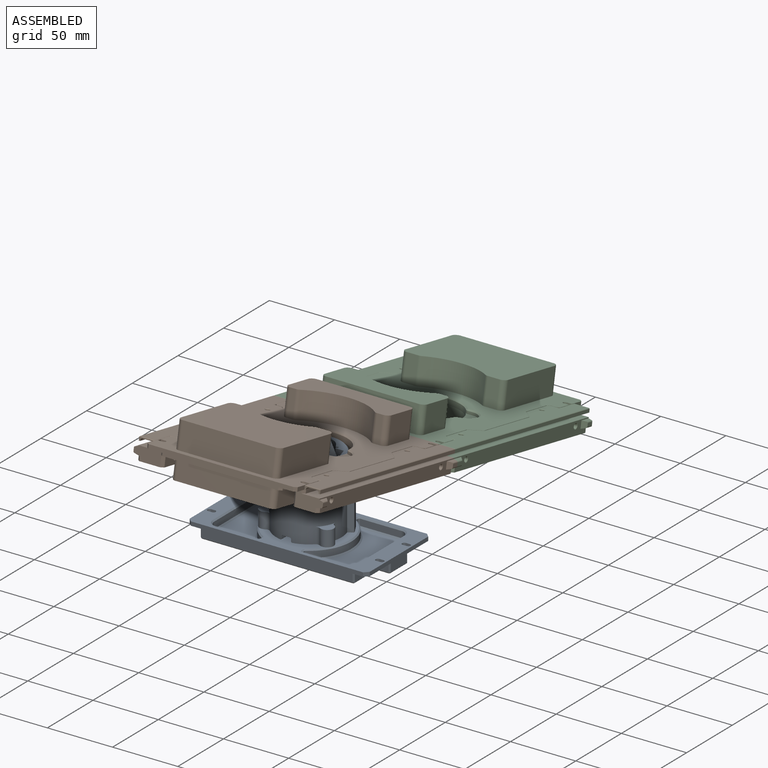
[diagram: assembled view]
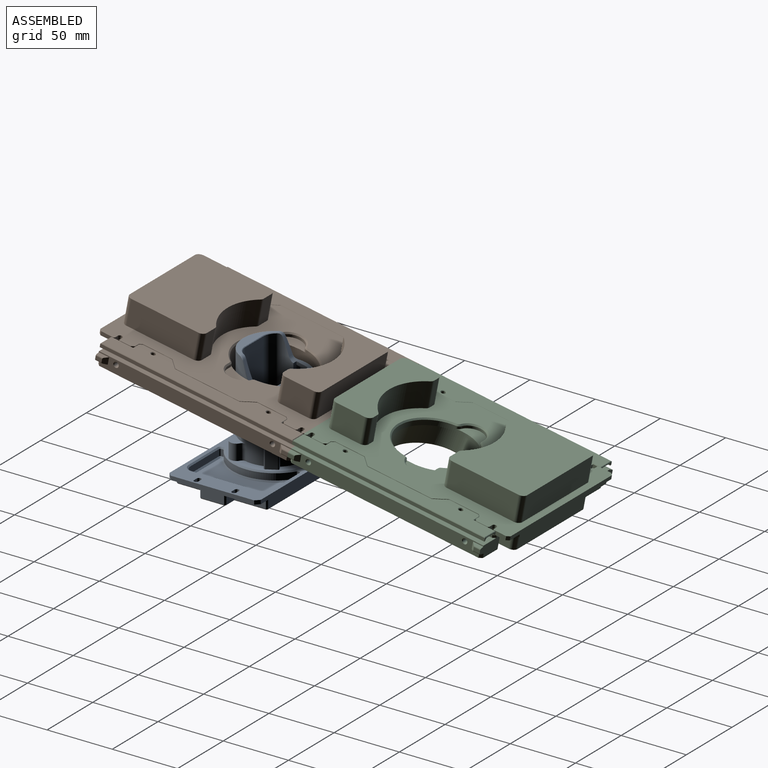
[diagram: assembled view, second angle]
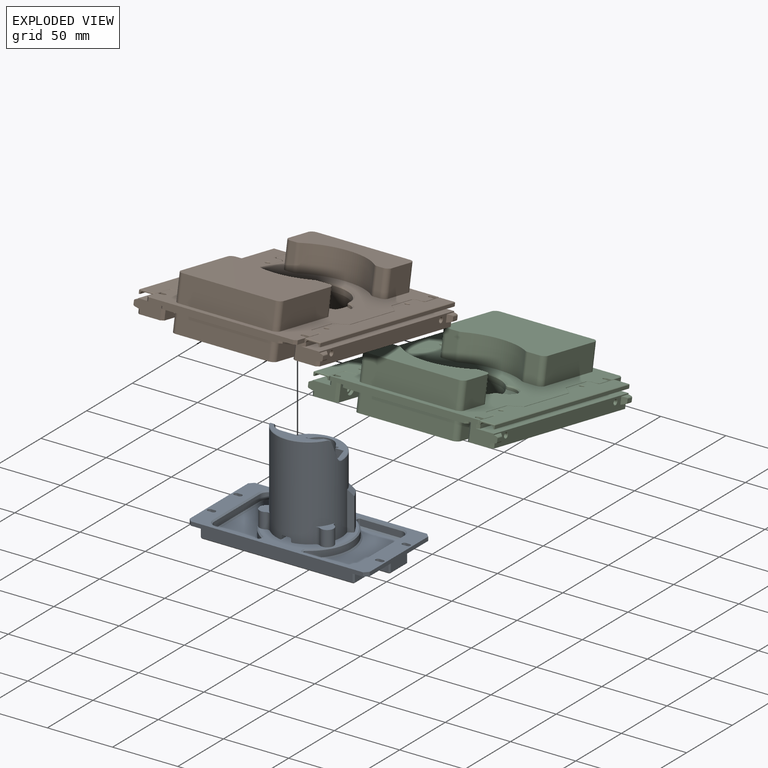
[diagram: exploded view]
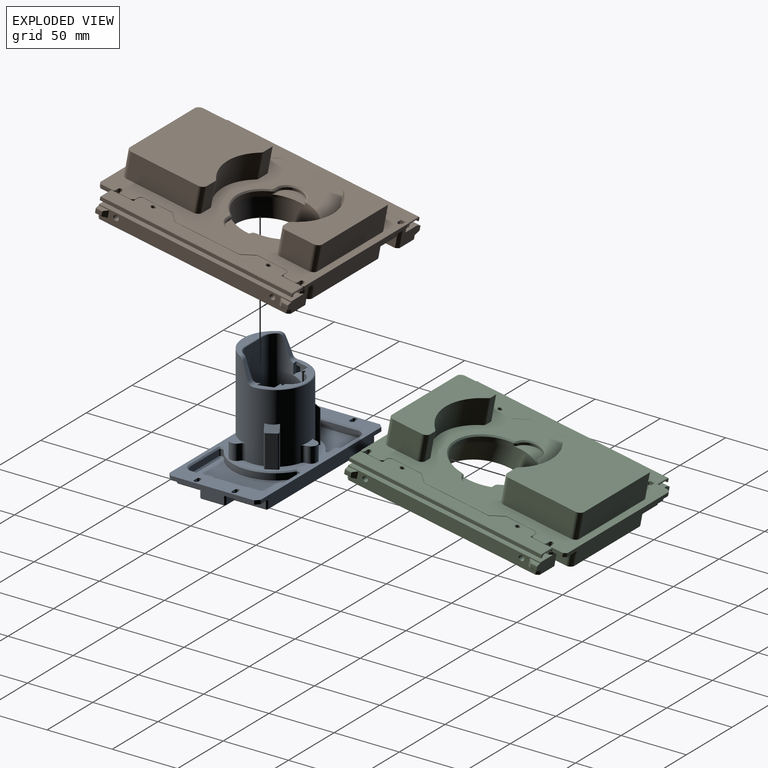
[diagram: exploded view, second angle]
FCSTD DOCUMENT  (FreeCAD 1.2R20260204 (Git shallow))
Label: RC-Robot-asm
License: All rights reserved
LicenseURL: https://en.wikipedia.org/wiki/All_rights_reserved
objects: App::Link×38, App::FeaturePython×10, App::Point×2, Assembly::AssemblyLink×1, Assembly::JointGroup×1, Assembly::AssemblyObject×1
EXTERNAL_REF file=RC-Robot-structure-asm.FCStd obj=Assembly
EXTERNAL_REF file=RC-Robot-structure-asm.FCStd obj=_2020_50mm
EXTERNAL_REF file=RC-Robot-structure-asm.FCStd obj=_2020_50mm001
EXTERNAL_REF file=RC-Robot-structure-asm.FCStd obj=_2020_300mm
EXTERNAL_REF file=RC-Robot-structure-asm.FCStd obj=_2020_300mm001
EXTERNAL_REF file=RC-Robot-structure-asm.FCStd obj=_2020_300mm002
EXTERNAL_REF file=RC-Robot-structure-asm.FCStd obj=_2020_300mm003
EXTERNAL_REF file=RC-Robot-structure-asm.FCStd obj=_2020_300mm004
EXTERNAL_REF file=RC-Robot-structure-asm.FCStd obj=_2020_300mm005
EXTERNAL_REF file=RC-Robot-structure-asm.FCStd obj=_2020_300mm006
EXTERNAL_REF file=RC-Robot-structure-asm.FCStd obj=_2020_300mm007
EXTERNAL_REF file=RC-Robot-structure-asm.FCStd obj=_2020_340mm
EXTERNAL_REF file=RC-Robot-structure-asm.FCStd obj=_2020_340mm001
EXTERNAL_REF file=RC-Robot-structure-asm.FCStd obj=_2020_340mm002
EXTERNAL_REF file=RC-Robot-structure-asm.FCStd obj=CoinLateralBD
EXTERNAL_REF file=RC-Robot-structure-asm.FCStd obj=CoinLateralHD
EXTERNAL_REF file=RC-Robot-structure-asm.FCStd obj=CoinAvant001
EXTERNAL_REF file=RC-Robot-structure-asm.FCStd obj=CoinAvant__Mirror__1_
EXTERNAL_REF file=RC-Robot-structure-asm.FCStd obj=CoinLateralHG
EXTERNAL_REF file=RC-Robot-structure-asm.FCStd obj=CoinLateralBG
EXTERNAL_REF file=RC-Robot-structure-asm.FCStd obj=CoinInterieurArriere001
EXTERNAL_REF file=RC-Robot-structure-asm.FCStd obj=CoinInterieurArriere__Mirror__3_
EXTERNAL_REF file=RC-Robot-structure-asm.FCStd obj=CoinInterieurAvant001
EXTERNAL_REF file=RC-Robot-structure-asm.FCStd obj=CoinInterieurAvant__Mirror__2_
EXTERNAL_REF file=RC-Robot-structure-asm.FCStd obj=CoinInterieurArriere002
EXTERNAL_REF file=RC-Robot-structure-asm.FCStd obj=CoinInterieurArriere__Mirror__3_001
EXTERNAL_REF file=RC-Robot-structure-asm.FCStd obj=GardeBoue
EXTERNAL_REF file=RC-Robot-structure-asm.FCStd obj=GardeBoue001
EXTERNAL_REF file=RC-Robot-structure-asm.FCStd obj=motor_mounted
EXTERNAL_REF file=RC-Robot-structure-asm.FCStd obj=motor_mounted001
EXTERNAL_REF file=RC-Robot-structure-asm.FCStd obj=EnsembleRoue
EXTERNAL_REF file=RC-Robot-structure-asm.FCStd obj=EnsembleRoue001
EXTERNAL_REF file=RC-Robot-structure-asm.FCStd obj=SupportAxeRoulement
EXTERNAL_REF file=RC-Robot-structure-asm.FCStd obj=SupportAxeRoulement001
EXTERNAL_REF file=RC-Robot-structure-asm.FCStd obj=free_wheel_support
EXTERNAL_REF file=RC-Robot-structure-asm.FCStd obj=free_wheel_support001
EXTERNAL_REF file=mecanical-parts/clip-panneau.FCStd obj=Part
EXTERNAL_REF file=electrical-parts/SupportBatterie.FCStd obj=Part

FEATURE [App::Point] Origin001  label="Origine"
  Role = Origin
FEATURE [App::Point] Origin003  label="Origine002"
  Role = Origin
FEATURE [App::Link] _2020_50mm  label="2020-50mm"
  LinkPlacement = pos=(-141,2.85605,40.8027) rot=(-1,0,0;0.09388rad)
  LinkedObject = -> <external RC-Robot-structure-asm.FCStd>#_2020_50mm
  Placement = pos=(-141,2.85605,40.8027) rot=(-1,0,0;0.09388rad)
FEATURE [App::Link] _2020_50mm001  label="2020-50mm001"
  LinkPlacement = pos=(-190,332.398,9.77417) rot=(0.046871,0.046871,0.997801;4.71019rad)
  LinkedObject = -> <external RC-Robot-structure-asm.FCStd>#_2020_50mm001
  Placement = pos=(-190,332.398,9.77417) rot=(0.046871,0.046871,0.997801;4.71019rad)
FEATURE [App::Link] _2020_300mm  label="2020-300mm"
  LinkPlacement = pos=(-176,170,-7.361e-13) rot=(1,0,0;4.71239rad)
  LinkedObject = -> <external RC-Robot-structure-asm.FCStd>#_2020_300mm
  Placement = pos=(-176,170,-7.361e-13) rot=(1,0,0;4.71239rad)
FEATURE [App::Link] _2020_300mm001  label="2020-300mm001"
  LinkPlacement = pos=(-176,174.679,49.6896) rot=(1,0,0;1.38304rad)
  LinkedObject = -> <external RC-Robot-structure-asm.FCStd>#_2020_300mm001
  Placement = pos=(-176,174.679,49.6896) rot=(1,0,0;1.38304rad)
FEATURE [App::Link] _2020_300mm002  label="2020-300mm002"
  LinkPlacement = pos=(-556,170,-4.884e-13) rot=(-1,0,0;1.5708rad)
  LinkedObject = -> <external RC-Robot-structure-asm.FCStd>#_2020_300mm002
  Placement = pos=(-556,170,-4.884e-13) rot=(-1,0,0;1.5708rad)
FEATURE [App::Link] _2020_300mm003  label="2020-300mm003"
  LinkPlacement = pos=(-556,174.679,49.6896) rot=(1,0,0;4.52463rad)
  LinkedObject = -> <external RC-Robot-structure-asm.FCStd>#_2020_300mm003
  Placement = pos=(-556,174.679,49.6896) rot=(1,0,0;4.52463rad)
FEATURE [App::Link] _2020_300mm004  label="2020-300mm004"
  LinkPlacement = pos=(-286,170,2.72e-14) rot=(-1,0,0;1.5708rad)
  LinkedObject = -> <external RC-Robot-structure-asm.FCStd>#_2020_300mm004
  Placement = pos=(-286,170,2.72e-14) rot=(-1,0,0;1.5708rad)
FEATURE [App::Link] _2020_300mm005  label="2020-300mm005"
  LinkPlacement = pos=(-446,170,-2.7e-15) rot=(1,0,0;4.71239rad)
  LinkedObject = -> <external RC-Robot-structure-asm.FCStd>#_2020_300mm005
  Placement = pos=(-446,170,-2.7e-15) rot=(1,0,0;4.71239rad)
FEATURE [App::Link] _2020_300mm006  label="2020-300mm006"
  LinkPlacement = pos=(-286,174.679,49.6896) rot=(1,0,0;4.52463rad)
  LinkedObject = -> <external RC-Robot-structure-asm.FCStd>#_2020_300mm006
  Placement = pos=(-286,174.679,49.6896) rot=(1,0,0;4.52463rad)
FEATURE [App::Link] _2020_300mm007  label="2020-300mm007"
  LinkPlacement = pos=(-446,174.679,49.6896) rot=(1,0,0;4.52463rad)
  LinkedObject = -> <external RC-Robot-structure-asm.FCStd>#_2020_300mm007
  Placement = pos=(-446,174.679,49.6896) rot=(1,0,0;4.52463rad)
FEATURE [App::Link] _2020_340mm  label="2020-340mm"
  LinkPlacement = pos=(6.41e-14,-403,-5.59e-14) rot=(0.57735,0.57735,0.57735;2.0944rad)
  LinkedObject = -> <external RC-Robot-structure-asm.FCStd>#_2020_340mm
  Placement = pos=(6.41e-14,-403,-5.59e-14) rot=(0.57735,0.57735,0.57735;2.0944rad)
FEATURE [App::Link] _2020_340mm001  label="2020-340mm001"
  LinkPlacement = pos=(1.53e-14,-67.5569,-314.496) rot=(0.093333,0.991251,-0.093333;4.7036rad)
  LinkedObject = -> <external RC-Robot-structure-asm.FCStd>#_2020_340mm001
  Placement = pos=(1.53e-14,-67.5569,-314.496) rot=(0.093333,0.991251,-0.093333;4.7036rad)
FEATURE [App::Link] _2020_340mm002  label="2020-340mm002"
  LinkPlacement = pos=(1.04e-14,312.134,-393.1) rot=(0.046871,0.997801,-0.046871;4.71019rad)
  LinkedObject = -> <external RC-Robot-structure-asm.FCStd>#_2020_340mm002
  Placement = pos=(1.04e-14,312.134,-393.1) rot=(0.046871,0.997801,-0.046871;4.71019rad)
FEATURE [App::Link] CoinLateralBD
  LinkPlacement = pos=(180,64.583,-54.9907) rot=(0.046871,-0.046871,0.997801;1.573rad)
  LinkedObject = -> <external RC-Robot-structure-asm.FCStd>#CoinLateralBD
  Placement = pos=(180,64.583,-54.9907) rot=(0.046871,-0.046871,0.997801;1.573rad)
FEATURE [App::Link] CoinLateralHD
  LinkPlacement = pos=(180,64.583,34.9907) rot=(-0.046871,0.046871,0.997801;1.573rad)
  LinkedObject = -> <external RC-Robot-structure-asm.FCStd>#CoinLateralHD
  Placement = pos=(180,64.583,34.9907) rot=(-0.046871,0.046871,0.997801;1.573rad)
FEATURE [App::Link] CoinAvant001
  LinkPlacement = pos=(180,64.583,34.9907) rot=(-0.046871,0.046871,0.997801;1.573rad)
  LinkedObject = -> <external RC-Robot-structure-asm.FCStd>#CoinAvant001
  Placement = pos=(180,64.583,34.9907) rot=(-0.046871,0.046871,0.997801;1.573rad)
FEATURE [App::Link] CoinAvant__Mirror__1_  label="CoinAvant (Mirror #1)"
  LinkPlacement = pos=(-160,64.583,34.9907) rot=(-0.046871,0.046871,0.997801;1.573rad)
  LinkedObject = -> <external RC-Robot-structure-asm.FCStd>#CoinAvant__Mirror__1_
  Placement = pos=(-160,64.583,34.9907) rot=(-0.046871,0.046871,0.997801;1.573rad)
FEATURE [App::Link] CoinLateralHG
  LinkPlacement = pos=(-220,64.583,34.9907) rot=(-0.046871,0.046871,0.997801;1.573rad)
  LinkedObject = -> <external RC-Robot-structure-asm.FCStd>#CoinLateralHG
  Placement = pos=(-220,64.583,34.9907) rot=(-0.046871,0.046871,0.997801;1.573rad)
FEATURE [App::Link] CoinLateralBG
  LinkPlacement = pos=(-220,49.6781,103.309) rot=(0.046871,-0.046871,0.997801;1.573rad)
  LinkedObject = -> <external RC-Robot-structure-asm.FCStd>#CoinLateralBG
  Placement = pos=(-220,49.6781,103.309) rot=(0.046871,-0.046871,0.997801;1.573rad)
FEATURE [App::Link] CoinInterieurArriere001
  LinkPlacement = pos=(70,64.583,34.9907) rot=(-0.046871,0.046871,0.997801;1.573rad)
  LinkedObject = -> <external RC-Robot-structure-asm.FCStd>#CoinInterieurArriere001
  Placement = pos=(70,64.583,34.9907) rot=(-0.046871,0.046871,0.997801;1.573rad)
FEATURE [App::Link] CoinInterieurArriere__Mirror__3_  label="CoinInterieurArriere (Mirror #3)"
  LinkPlacement = pos=(-124,64.583,34.9907) rot=(-0.046871,0.046871,0.997801;1.573rad)
  LinkedObject = -> <external RC-Robot-structure-asm.FCStd>#CoinInterieurArriere__Mirror__3_
  Placement = pos=(-124,64.583,34.9907) rot=(-0.046871,0.046871,0.997801;1.573rad)
FEATURE [App::Link] CoinInterieurAvant001
  LinkPlacement = pos=(70,64.583,34.9907) rot=(-0.046871,0.046871,0.997801;1.573rad)
  LinkedObject = -> <external RC-Robot-structure-asm.FCStd>#CoinInterieurAvant001
  Placement = pos=(70,64.583,34.9907) rot=(-0.046871,0.046871,0.997801;1.573rad)
FEATURE [App::Link] CoinInterieurAvant__Mirror__2_  label="CoinInterieurAvant (Mirror #2)"
  LinkPlacement = pos=(-15,64.583,34.9907) rot=(-0.046871,0.046871,0.997801;1.573rad)
  LinkedObject = -> <external RC-Robot-structure-asm.FCStd>#CoinInterieurAvant__Mirror__2_
  Placement = pos=(-15,64.583,34.9907) rot=(-0.046871,0.046871,0.997801;1.573rad)
FEATURE [App::Link] CoinInterieurArriere002
  LinkPlacement = pos=(-70,64.583,34.9907) rot=(0.706717,0.706717,-0.033198;3.07522rad)
  LinkedObject = -> <external RC-Robot-structure-asm.FCStd>#CoinInterieurArriere002
  Placement = pos=(-70,64.583,34.9907) rot=(0.706717,0.706717,-0.033198;3.07522rad)
FEATURE [App::Link] CoinInterieurArriere__Mirror__3_001  label="CoinInterieurArriere (Mirror #3)001"
  LinkPlacement = pos=(124,64.583,34.9907) rot=(0.706717,0.706717,-0.033198;3.07522rad)
  LinkedObject = -> <external RC-Robot-structure-asm.FCStd>#CoinInterieurArriere__Mirror__3_001
  Placement = pos=(124,64.583,34.9907) rot=(0.706717,0.706717,-0.033198;3.07522rad)
FEATURE [App::Link] GardeBoue
  LinkPlacement = pos=(180,68.0254,34.3367) rot=(-0.046871,0.046871,0.997801;1.573rad)
  LinkedObject = -> <external RC-Robot-structure-asm.FCStd>#GardeBoue
  Placement = pos=(180,68.0254,34.3367) rot=(-0.046871,0.046871,0.997801;1.573rad)
FEATURE [App::Link] GardeBoue001
  LinkPlacement = pos=(-90,68.0254,34.3367) rot=(-0.046871,0.046871,0.997801;1.573rad)
  LinkedObject = -> <external RC-Robot-structure-asm.FCStd>#GardeBoue001
  Placement = pos=(-90,68.0254,34.3367) rot=(-0.046871,0.046871,0.997801;1.573rad)
FEATURE [App::Link] motor_mounted  label="motor-mounted"
  LinkPlacement = pos=(100,164.143,25.6165) rot=(0,0.046923,0.998899;3.14159rad)
  LinkedObject = -> <external RC-Robot-structure-asm.FCStd>#motor_mounted
  Placement = pos=(100,164.143,25.6165) rot=(0,0.046923,0.998899;3.14159rad)
FEATURE [App::Link] motor_mounted001  label="motor-mounted001"
  LinkPlacement = pos=(-100,164.143,25.6165) rot=(1,0,0;3.04771rad)
  LinkedObject = -> <external RC-Robot-structure-asm.FCStd>#motor_mounted001
  Placement = pos=(-100,164.143,25.6165) rot=(1,0,0;3.04771rad)
FEATURE [App::Link] EnsembleRoue
  LinkPlacement = pos=(-145.4,64.583,34.9907) rot=(-1,0,0;0.09388rad)
  LinkedObject = -> <external RC-Robot-structure-asm.FCStd>#EnsembleRoue
  Placement = pos=(-145.4,64.583,34.9907) rot=(-1,0,0;0.09388rad)
FEATURE [App::Link] EnsembleRoue001
  LinkPlacement = pos=(145.4,64.583,34.9907) rot=(0,0.998899,-0.046923;3.14159rad)
  LinkedObject = -> <external RC-Robot-structure-asm.FCStd>#EnsembleRoue001
  Placement = pos=(145.4,64.583,34.9907) rot=(0,0.998899,-0.046923;3.14159rad)
FEATURE [App::Link] SupportAxeRoulement
  LinkPlacement = pos=(180,64.5822,34.9908) rot=(-0.04687,0.04687,0.997801;1.573rad)
  LinkedObject = -> <external RC-Robot-structure-asm.FCStd>#SupportAxeRoulement
  Placement = pos=(180,64.5822,34.9908) rot=(-0.04687,0.04687,0.997801;1.573rad)
FEATURE [App::Link] SupportAxeRoulement001
  LinkPlacement = pos=(-180,64.583,34.9908) rot=(0.706717,0.706717,-0.033197;3.07522rad)
  LinkedObject = -> <external RC-Robot-structure-asm.FCStd>#SupportAxeRoulement001
  Placement = pos=(-180,64.583,34.9908) rot=(0.706717,0.706717,-0.033197;3.07522rad)
FEATURE [App::Link] free_wheel_support  label="free-wheel-support"
  LinkPlacement = pos=(-133.5,339.019,-0.893384) rot=(-0.046871,0.046871,0.997801;1.573rad)
  LinkedObject = -> <external RC-Robot-structure-asm.FCStd>#free_wheel_support
  Placement = pos=(-133.5,339.019,-0.893384) rot=(-0.046871,0.046871,0.997801;1.573rad)
FEATURE [App::Link] free_wheel_support001  label="free-wheel-support001"
  LinkPlacement = pos=(133.5,339.019,-0.893384) rot=(-0.046871,0.046871,0.997801;1.573rad)
  LinkedObject = -> <external RC-Robot-structure-asm.FCStd>#free_wheel_support001
  Placement = pos=(133.5,339.019,-0.893384) rot=(-0.046871,0.046871,0.997801;1.573rad)
FEATURE [Assembly::AssemblyLink] structure_asm  label="structure-asm"
  Group = -> [_2020_50mm,_2020_50mm001,_2020_300mm,_2020_300mm001,_2020_300mm002,_2020_300mm003,_2020_300mm004,_2020_300mm005,_2020_300mm006,_2020_300mm007,_2020_340mm,_2020_340mm001,_2020_340mm002,CoinLateralBD,CoinLateralHD,CoinAvant001,CoinAvant__Mirror__1_,CoinLateralHG,CoinLateralBG,CoinInterieurArriere001,CoinInterieurArriere__Mirror__3_,CoinInterieurAvant001,CoinInterieurAvant__Mirror__2_,+12 more]
  LinkedObject = -> <external RC-Robot-structure-asm.FCStd>#Assembly
  Origin = -> Origin002
  Placement = pos=(0,4e-16,0) rot=(0,0,1;0rad)
  Rigid = true
FEATURE [App::FeaturePython] GroundedJoint  label="GroundedJoint001"  # Assembly grounded joint (typed FeaturePython)
  ObjectToGround = -> structure_asm
FEATURE [App::Link] carter_top_asm  label="carter-top-asm"
  LinkPlacement = pos=(-70,48.9233,84.2706) rot=(-0.093333,0.093333,0.991251;1.57958rad)
  LinkedObject = -> <external mecanical-parts/clip-panneau.FCStd>#Part
  Placement = pos=(-70,48.9233,84.2706) rot=(-0.093333,0.093333,0.991251;1.57958rad)
FEATURE [App::FeaturePython] Joint  label="Parallel026"  # Assembly joint (typed FeaturePython)
  Angle = 0
  AngleMax = 0
  AngleMin = 0
  Detach1 = false
  Detach2 = false
  Distance = 0
  Distance2 = 0
  EnableAngleMax = false
  EnableAngleMin = false
  EnableLengthMax = false
  EnableLengthMin = false
  JointType = 6 (Parallel)
  LengthMax = 0
  LengthMin = 0
  Placement1 = pos=(55,-6.01478,-6.5) rot=(-0.707107,0.707107,0;3.14159rad)
  Placement2 = pos=(357.5,-10,150) rot=(-0.57735,-0.57735,-0.57735;2.0944rad)
  Reference1 = -> carter_top_asm [Link.Body001.Face15,Link.Body001.Face15]
  Reference2 = -> structure_asm [_2020_300mm006.Face49,_2020_300mm006.Vertex26]
  Suppressed = false
FEATURE [App::FeaturePython] Joint001  label="Distance094"  # Assembly joint (typed FeaturePython)
  Angle = 0
  AngleMax = 0
  AngleMin = 0
  Detach1 = false
  Detach2 = false
  Distance = 0
  Distance2 = 0
  EnableAngleMax = false
  EnableAngleMin = false
  EnableLengthMax = false
  EnableLengthMin = false
  JointType = 5 (Distance)
  LengthMax = 0
  LengthMin = 0
  Placement1 = pos=(-20,-8.97215,-10.8882) rot=(-0.707107,0,0.707107;3.14159rad)
  Placement2 = pos=(-41.111,-10.0469,-38.9692) rot=(0,-1,0;1.66468rad)
  Reference1 = -> carter_top_asm [Part001.Body001.Face10,Part001.Body001.Face10]
  Reference2 = -> structure_asm [CoinInterieurArriere002.Face5,CoinInterieurArriere002.Face5]
  Suppressed = false
FEATURE [App::FeaturePython] Joint002  label="Distance095"  # Assembly joint (typed FeaturePython)
  Angle = 0
  AngleMax = 0
  AngleMin = 0
  Detach1 = false
  Detach2 = false
  Distance = 0
  Distance2 = 0
  EnableAngleMax = false
  EnableAngleMin = false
  EnableLengthMax = false
  EnableLengthMin = false
  JointType = 5 (Distance)
  LengthMax = 0
  LengthMin = 0
  Placement1 = pos=(55,-2.2e-15,-11.5925) rot=(0.57735,0.57735,0.57735;4.18879rad)
  Placement2 = pos=(376,6.7,-4.832e-13) rot=(0,1,0;4.71239rad)
  Reference1 = -> carter_top_asm [Part001.Body001.Face18,Part001.Body001.Face18]
  Reference2 = -> structure_asm [_2020_300mm007.Face5,_2020_300mm007.Vertex4]
  Suppressed = false
FEATURE [App::FeaturePython] Joint003  label="Distance097"  # Assembly joint (typed FeaturePython)
  Angle = 0
  AngleMax = 0
  AngleMin = 0
  Detach1 = false
  Detach2 = false
  Distance = 0
  Distance2 = 0
  EnableAngleMax = false
  EnableAngleMin = false
  EnableLengthMax = false
  EnableLengthMin = false
  JointType = 5 (Distance)
  LengthMax = 0
  LengthMin = 0
  Placement1 = pos=(55,-7.89727,-0.5) rot=(0,0,1;0rad)
  Placement2 = pos=(372.7,-10,-4.547e-13) rot=(-0.57735,-0.57735,-0.57735;2.0944rad)
  Reference1 = -> carter_top_asm [Part001.Body002.Face40,Part001.Body002.Edge16]
  Reference2 = -> structure_asm [_2020_300mm007.Face29,_2020_300mm007.Face29]
  Suppressed = false
FEATURE [App::Link] carter_top_asm001  label="carter-top-asm001"
  LinkPlacement = pos=(69,304.354,35.7395) rot=(-0.093333,-0.093333,-0.991251;1.57958rad)
  LinkedObject = -> <external mecanical-parts/clip-panneau.FCStd>#Part
  Placement = pos=(69,304.354,35.7395) rot=(-0.093333,-0.093333,-0.991251;1.57958rad)
FEATURE [App::FeaturePython] Joint004  label="Distance098"  # Assembly joint (typed FeaturePython)
  Angle = 0
  AngleMax = 0
  AngleMin = 0
  Detach1 = false
  Detach2 = false
  Distance = 0
  Distance2 = 0
  EnableAngleMax = false
  EnableAngleMin = false
  EnableLengthMax = false
  EnableLengthMin = false
  JointType = 5 (Distance)
  LengthMax = 0
  LengthMin = 0
  Placement1 = pos=(55,-69.5,-0.5) rot=(0,0,1;1.5708rad)
  Placement2 = pos=(55,-69.5,-0.5) rot=(0,0,1;1.5708rad)
  Reference1 = -> carter_top_asm001 [Body003.?Face22,Body003.?Face22]
  Reference2 = -> carter_top_asm [Body004.,Body004.]
  Suppressed = false
FEATURE [App::FeaturePython] Joint005  label="Fixed008"  # Assembly joint (typed FeaturePython)
  Angle = 0
  AngleMax = 0
  AngleMin = 0
  Detach1 = false
  Detach2 = false
  Distance = 0
  Distance2 = 0
  EnableAngleMax = false
  EnableAngleMin = false
  EnableLengthMax = false
  EnableLengthMin = false
  JointType = 0 (Fixed)
  LengthMax = 0
  LengthMin = 0
  Placement1 = pos=(130,-8.97215,-10.8882) rot=(-0.707107,0,0.707107;3.14159rad)
  Placement2 = pos=(-20,-8.97215,-10.8882) rot=(-0.707107,0,0.707107;3.14159rad)
  Reference1 = -> carter_top_asm [Part001.Body001.Face3,Part001.Body001.Face3]
  Reference2 = -> carter_top_asm001 [Link.Body001.Face10,Link.Body001.Face10]
  Suppressed = false
FEATURE [App::Link] battery_asm  label="battery-asm"
  LinkPlacement = pos=(-1.091e-13,115,20) rot=(0,0,1;1.5708rad)
  LinkedObject = -> <external electrical-parts/SupportBatterie.FCStd>#Part
  Placement = pos=(-1.091e-13,115,20) rot=(0,0,1;1.5708rad)
FEATURE [App::FeaturePython] Joint006  label="Distance101"  # Assembly joint (typed FeaturePython)
  Angle = 0
  AngleMax = 0
  AngleMin = 0
  Detach1 = false
  Detach2 = false
  Distance = 0
  Distance2 = 0
  EnableAngleMax = false
  EnableAngleMin = false
  EnableLengthMax = false
  EnableLengthMin = false
  JointType = 5 (Distance)
  LengthMax = 0
  LengthMin = 0
  Placement1 = pos=(2.2e-15,9e-16,10) rot=(0,0,1;0rad)
  Placement2 = pos=(359.3,-10,4.547e-13) rot=(0.57735,0.57735,0.57735;4.18879rad)
  Reference1 = -> battery_asm [Body001.Face1,Body001.Vertex28]
  Reference2 = -> structure_asm [_2020_300mm004.Face49,_2020_300mm004.Face49]
  Suppressed = false
FEATURE [App::FeaturePython] Joint007  label="Distance102"  # Assembly joint (typed FeaturePython)
  Angle = 0
  AngleMax = 0
  AngleMin = 0
  Detach1 = false
  Detach2 = false
  Distance = -1
  Distance2 = 0
  EnableAngleMax = false
  EnableAngleMin = false
  EnableLengthMax = false
  EnableLengthMin = false
  JointType = 5 (Distance)
  LengthMax = 0
  LengthMin = 0
  Placement1 = pos=(-4.182e-13,-69,6.7375) rot=(-1,0,0;1.5708rad)
  Placement2 = pos=(356,-6.7,0) rot=(0,1,0;1.5708rad)
  Reference1 = -> battery_asm [Body001.Face15,Body001.Face15]
  Reference2 = -> structure_asm [_2020_300mm004.Face46,_2020_300mm004.Vertex27]
  Suppressed = false
FEATURE [App::FeaturePython] Joint008  label="Distance103"  # Assembly joint (typed FeaturePython)
  Angle = 0
  AngleMax = 0
  AngleMin = 0
  Detach1 = false
  Detach2 = false
  Distance = -70
  Distance2 = 0
  EnableAngleMax = false
  EnableAngleMin = false
  EnableLengthMax = false
  EnableLengthMin = false
  JointType = 5 (Distance)
  LengthMax = 0
  LengthMin = 0
  Placement1 = pos=(-35,2.1e-15,5.43493) rot=(0.57735,-0.57735,0.57735;4.18879rad)
  Placement2 = pos=(413,-6.7,6.02e-13) rot=(0,-1,0;1.5708rad)
  Reference1 = -> battery_asm [Body001.Face18,Body001.Face18]
  Reference2 = -> structure_asm [_2020_340mm.Face25,_2020_340mm.Face25]
  Suppressed = false
FEATURE [Assembly::JointGroup] Joints
  Group = -> [GroundedJoint,Joint,Joint001,Joint002,Joint003,Joint004,Joint005,Joint006,Joint007,Joint008]
FEATURE [Assembly::AssemblyObject] Assembly
  Group = -> [Joints,structure_asm,GroundedJoint,carter_top_asm,Joint,Joint001,Joint002,Joint003,carter_top_asm001,Joint004,Joint005,battery_asm,Joint006,Joint007,Joint008]
  Origin = -> Origin
  Type = Assembly

RESOLVED EXTERNAL PARTS (link-assembly join: the EXTERNAL_REF files above that resolve inside this repo's crawl, each included once):
---- part RC-Robot-structure-asm.FCStd = doc fcstd_b17473e695a2 (79336 chars; too large to inline — full recipe in that document) ----
---- part electrical-parts/SupportBatterie.FCStd = doc fcstd_99661ce1a1da ----
FCSTD DOCUMENT  (FreeCAD 1.2R20260204 (Git shallow))
Label: SupportBatterie
License: All rights reserved
LicenseURL: https://en.wikipedia.org/wiki/All_rights_reserved
objects: Sketcher::SketchObject×17, PartDesign::Pocket×12, PartDesign::Chamfer×11, PartDesign::Fillet×8, PartDesign::Pad×6, PartDesign::Mirrored×4, Image::ImagePlane×3, App::Point×3, PartDesign::Draft×2, PartDesign::Body×2, App::DocumentObjectGroup×1, PartDesign::PolarPattern×1, PartDesign::SubShapeBinder×1, App::Part×1
note: 164 computed .brp shape members not serialized (recipe doc carries the construction recipe); baked Part::Feature solids carry a one-line shape summary decoded from their .brp

FEATURE [Image::ImagePlane] IMG_20250729_205622
  Placement = pos=(4.02698,3.13465,0.3) rot=(0,0,1;0.021991rad)
  XSize = 54.8631
  YSize = 121.865
FEATURE [Image::ImagePlane] IMG_20250729_205825
  Placement = pos=(5.3,0,28.7) rot=(0.57735,0.57735,-0.57735;2.0944rad)
  XSize = 200.469
  YSize = 90.2503
FEATURE [Sketcher::SketchObject] Sketch
  ArcFitTolerance = 1e-06
  AttachmentSupport = -> [XY_Plane]
  ExternalTypes = [0]
  FullyConstrained = true
  MakeInternals = false
  MapMode = 5
  sketch-geometry (21):
    g0: ArcOfCircle CenterX=11.2267 CenterY=0 CenterZ=0 NormalX=0 NormalY=0 NormalZ=1 AngleXU=0 Radius=10.58 StartAngle=5.23599 EndAngle=7.33038
    g1: ArcOfCircle CenterX=-5.61333 CenterY=9.72258 CenterZ=0 NormalX=0 NormalY=0 NormalZ=1 AngleXU=0 Radius=10.58 StartAngle=1.0472 EndAngle=3.14159
    g2: ArcOfCircle CenterX=-5.61333 CenterY=-9.72258 CenterZ=0 NormalX=0 NormalY=0 NormalZ=1 AngleXU=0 Radius=10.58 StartAngle=3.14159 EndAngle=5.23599
    g3: LineSegment [constr] StartX=-0.323333 StartY=18.8851 StartZ=0 EndX=16.5167 EndY=9.16255 EndZ=0
    g4: LineSegment [constr] StartX=16.5167 StartY=-9.16255 StartZ=0 EndX=-0.323333 EndY=-18.8851 EndZ=0
    g5: LineSegment StartX=-16.1933 StartY=-9.72258 StartZ=0 EndX=-16.1933 EndY=9.72258 EndZ=0
    g6: LineSegment [constr] StartX=-5.61333 StartY=9.72258 StartZ=0 EndX=9e-16 EndY=0 EndZ=0
    g7: LineSegment [constr] StartX=0 StartY=0 StartZ=0 EndX=11.2267 EndY=0 EndZ=0
    g8: LineSegment [constr] StartX=0 StartY=0 StartZ=0 EndX=-5.61333 EndY=-9.72258 EndZ=0
    g9: GeomPoint [constr] X=21.8067 Y=0 Z=0
    g10: Circle CenterX=0 CenterY=0 CenterZ=0 NormalX=0 NormalY=0 NormalZ=1 AngleXU=0 Radius=25
    g11: LineSegment StartX=12.55 StartY=11.4527 StartZ=0 EndX=13.45 EndY=13.0116 EndZ=0
    g12: LineSegment StartX=13.45 StartY=13.0116 StartZ=0 EndX=15.0088 EndY=12.1116 EndZ=0
    g13: LineSegment StartX=15.0088 StartY=12.1116 StartZ=0 EndX=14.1088 EndY=10.5527 EndZ=0
    g14: LineSegment StartX=12.55 StartY=-11.4527 StartZ=0 EndX=13.45 EndY=-13.0116 EndZ=0
    g15: LineSegment StartX=13.45 StartY=-13.0116 StartZ=0 EndX=15.0088 EndY=-12.1116 EndZ=0
    g16: LineSegment StartX=15.0088 StartY=-12.1116 StartZ=0 EndX=14.1088 EndY=-10.5527 EndZ=0
    g17: LineSegment StartX=-0.323333 StartY=18.8851 StartZ=0 EndX=12.55 EndY=11.4527 EndZ=0
    g18: LineSegment StartX=14.1088 StartY=10.5527 StartZ=0 EndX=16.5167 EndY=9.16255 EndZ=0
    g19: LineSegment StartX=14.1088 StartY=-10.5527 StartZ=0 EndX=16.5167 EndY=-9.16255 EndZ=0
    g20: LineSegment StartX=12.55 StartY=-11.4527 StartZ=0 EndX=-0.323333 EndY=-18.8851 EndZ=0
  constraints (52):
    c: Equal(g1,g2)
    c: Equal(g2,g0)
    c: Vertical(g5)
    c: Tangent(g5,g1) = 1.5708
    c: Tangent(g3,g1) = 1.5708
    c: Tangent(g3,g0) = 1.5708
    c: Tangent(g4,g0) = 1.5708
    c: Tangent(g4,g2) = 1.5708
    c: Tangent(g5,g2) = 1.5708
    c: PointOnObject(g0,g-1)
    c: Equal(g5,g4)
    c: Equal(g4,g3)
    c: Coincident(g6,g1)
    c: Coincident(g6,g-1)
    c: Coincident(g7,g6)
    c: Coincident(g7,g0)
    c: Coincident(g8,g6)
    c: Coincident(g8,g2)
    c: Equal(g6,g7)
    c: PointOnObject(g9,g-1)
    c: PointOnObject(g9,g0)
    c: DistanceX(g1,g9) = 38
    c: Radius(g0) = 10.58
    c: Coincident(g10,g6)
    c: Diameter(g10) = 50
    c: PointOnObject(g11,g3)
    c: Coincident(g11,g12)
    c: Coincident(g12,g13)
    c: PointOnObject(g13,g3)
    c: Perpendicular(g12,g11)
    c: Perpendicular(g13,g12)
    c: Perpendicular(g3,g11)
    c: PointOnObject(g14,g4)
    c: Coincident(g14,g15)
    c: Coincident(g15,g16)
    c: Perpendicular(g15,g16)
    c: Perpendicular(g14,g15)
    c: Perpendicular(g4,g16)
    c: Equal(g15,g12)
    c: Symmetric(g13,g16,g-1)
    c: Equal(g13,g16)
    c: Distance(g12) = 1.8
    c: Distance(g11) = 1.8
    c: DistanceX(g10,g11) = 12.55
    c: Coincident(g17,g1)
    c: Coincident(g17,g11)
    c: Coincident(g18,g13)
    c: Coincident(g18,g0)
    c: Coincident(g19,g16)
    c: Coincident(g19,g0)
    c: Coincident(g20,g14)
    c: Coincident(g20,g2)
FEATURE [PartDesign::Pad] Pad
  AlongSketchNormal = false
  Direction = (0,0,1)
  Length = 61
  Length2 = 10
  Profile = -> Sketch
  ReferenceAxis = -> Sketch [N_Axis]
  Refine = true
  SideType = 0
  Suppressed = false
  Type = 0
  Type2 = 0
FEATURE [Sketcher::SketchObject] Sketch001
  ArcFitTolerance = 1e-06
  AttachmentSupport = -> [XY_Plane]
  ExternalGeometry = -> [Pad]
  ExternalTypes = [0]
  FullyConstrained = true
  MakeInternals = false
  MapMode = 5
  sketch-geometry (8):
    g0: LineSegment StartX=4.91 StartY=15.8637 StartZ=0 EndX=3.455 EndY=13.3435 EndZ=0
    g1: LineSegment StartX=3.455 StartY=13.3435 StartZ=0 EndX=9.99349 EndY=9.56853 EndZ=0
    g2: LineSegment StartX=9.99349 StartY=9.56853 StartZ=0 EndX=11.4485 EndY=12.0887 EndZ=0
    g3: LineSegment StartX=11.4485 StartY=12.0887 StartZ=0 EndX=4.91 EndY=15.8637 EndZ=0
    g4: LineSegment StartX=4.91 StartY=-15.8637 StartZ=0 EndX=3.455 EndY=-13.3435 EndZ=0
    g5: LineSegment StartX=3.455 StartY=-13.3435 StartZ=0 EndX=9.99349 EndY=-9.56853 EndZ=0
    g6: LineSegment StartX=9.99349 StartY=-9.56853 StartZ=0 EndX=11.4485 EndY=-12.0887 EndZ=0
    g7: LineSegment StartX=11.4485 StartY=-12.0887 StartZ=0 EndX=4.91 EndY=-15.8637 EndZ=0
  constraints (23):
    c: PointOnObject(g0,g-3)
    c: Coincident(g0,g1)
    c: Coincident(g1,g2)
    c: PointOnObject(g2,g-3)
    c: Coincident(g2,g3)
    c: Coincident(g3,g0)
    c: PointOnObject(g4,g-4)
    c: Coincident(g4,g5)
    c: Coincident(g5,g6)
    c: Coincident(g6,g7)
    c: Coincident(g7,g4)
    c: Equal(g7,g5)
    c: Equal(g5,g1)
    c: Equal(g1,g3)
    c: Equal(g2,g0)
    c: Equal(g0,g6)
    c: Equal(g6,g4)
    c: Perpendicular(g2,g1)
    c: Perpendicular(g6,g7)
    c: Symmetric(g6,g2,g-1)
    c: Distance(g3) = 7.55
    c: Distance(g2) = 2.91
    c: DistanceX(g-1,g0) = 4.91
FEATURE [PartDesign::Pad] Pad001
  AlongSketchNormal = false
  BaseFeature = -> Pad
  Direction = (0,0,1)
  Length = 1.5
  Length2 = 10
  Profile = -> Sketch001
  ReferenceAxis = -> Sketch001 [N_Axis]
  Refine = true
  SideType = 0
  Suppressed = false
  Type = 0
  Type2 = 0
FEATURE [PartDesign::Chamfer] Chamfer
  Angle = 45
  Base = -> Pad001 [Edge29,Edge35,Edge23,Edge18]
  BaseFeature = -> Pad001
  ChamferType = 0
  FlipDirection = false
  Refine = true
  Size = 0.4
  Size2 = 1
  SupportTransform = false
  Suppressed = false
  UseAllEdges = false
FEATURE [PartDesign::Fillet] Fillet
  Base = -> Chamfer [Edge81,Edge77,Edge72,Edge76]
  BaseFeature = -> Chamfer
  Radius = 0.6
  Refine = true
  SupportTransform = false
  Suppressed = false
  UseAllEdges = false
FEATURE [PartDesign::Chamfer] Chamfer001
  Angle = 45
  Base = -> Fillet [Face32]
  BaseFeature = -> Fillet
  ChamferType = 0
  FlipDirection = false
  Refine = true
  Size = 0.4
  Size2 = 1
  SupportTransform = false
  Suppressed = false
  UseAllEdges = false
FEATURE [Sketcher::SketchObject] Sketch002
  ArcFitTolerance = 1e-06
  AttachmentSupport = -> [XZ_Plane]
  ExternalGeometry = -> [Chamfer001]
  ExternalTypes = [0]
  FullyConstrained = true
  MakeInternals = false
  MapMode = 5
  Placement = pos=(0,0,0) rot=(1,0,0;1.5708rad)
  sketch-geometry (4):
    g0: LineSegment StartX=-9.41 StartY=61 StartZ=0 EndX=-2.71 EndY=43.5 EndZ=0
    g1: LineSegment StartX=-2.71 StartY=43.5 StartZ=0 EndX=25 EndY=43.5 EndZ=0
    g2: LineSegment StartX=25 StartY=43.5 StartZ=0 EndX=25 EndY=61 EndZ=0
    g3: LineSegment StartX=-9.41 StartY=61 StartZ=0 EndX=25 EndY=61 EndZ=0
  constraints (12):
    c: Coincident(g1,g0)
    c: Coincident(g2,g1)
    c: Vertical(g2)
    c: Coincident(g3,g0)
    c: Coincident(g3,g2)
    c: Horizontal(g3)
    c: Horizontal(g1)
    c: DistanceY(g2,g2) = 17.5
    c: PointOnObject(g-3,g3)
    c: PointOnObject(g-4,g2)
    c: DistanceX(g3,g3) = 34.41
    c: DistanceX(g1,g1) = 27.71
FEATURE [PartDesign::Pocket] Pocket
  AlongSketchNormal = false
  BaseFeature = -> Chamfer001
  Direction = (0,1,-2e-16)
  Length = 60
  Length2 = 10
  Profile = -> Sketch002
  ReferenceAxis = -> Sketch002 [N_Axis]
  Refine = true
  SideType = 2
  Suppressed = false
  Type = 0
  Type2 = 0
FEATURE [PartDesign::Fillet] Fillet001
  Base = -> Pocket [Edge106,Edge67,Edge51,Edge111]
  BaseFeature = -> Pocket
  Radius = 4
  Refine = true
  SupportTransform = false
  Suppressed = false
  UseAllEdges = false
FEATURE [Image::ImagePlane] IMG_20250729_205826  label="IMG_20250729_205826_205826"
  Placement = pos=(4.02698,3.13465,43.6) rot=(0,0,1;0.021991rad)
  XSize = 54.8631
  YSize = 121.865
FEATURE [Sketcher::SketchObject] Sketch003
  ArcFitTolerance = 1e-06
  AttachmentSupport = -> [Fillet001]
  ExternalGeometry = -> [Fillet001]
  ExternalTypes = [0]
  FullyConstrained = true
  MakeInternals = false
  MapMode = 5
  Placement = pos=(0,9.7e-15,43.5) rot=(0,0,1;0rad)
  sketch-geometry (4):
    g0: LineSegment StartX=1.07 StartY=18.0807 StartZ=0 EndX=1.07 EndY=21.5807 EndZ=0
    g1: LineSegment StartX=12.07 StartY=18.2298 StartZ=0 EndX=12.07 EndY=11.7298 EndZ=0
    g2: LineSegment StartX=1.07 StartY=18.0807 StartZ=0 EndX=12.07 EndY=11.7298 EndZ=0
    g3: LineSegment StartX=1.07 StartY=21.5807 StartZ=0 EndX=12.07 EndY=18.2298 EndZ=0
  constraints (12):
    c: Vertical(g0)
    c: Vertical(g1)
    c: Coincident(g2,g0)
    c: Coincident(g2,g1)
    c: DistanceX(g0) = 1.07
    c: DistanceY(g0,g0) = 3.5
    c: DistanceY(g1,g1) = 6.5
    c: DistanceX(g0,g1) = 11
    c: Coincident(g3,g0)
    c: Coincident(g3,g1)
    c: PointOnObject(g0,g-3)
    c: PointOnObject(g1,g-3)
FEATURE [PartDesign::Pocket] Pocket001
  AlongSketchNormal = false
  BaseFeature = -> Fillet001
  Direction = (0,0,-1)
  Length = 8
  Length2 = 10
  Profile = -> Sketch003
  ReferenceAxis = -> Sketch003 [N_Axis]
  Refine = true
  SideType = 0
  Suppressed = false
  Type = 0
  Type2 = 0
FEATURE [Sketcher::SketchObject] Sketch004
  ArcFitTolerance = 1e-06
  AttachmentSupport = -> [Pocket001]
  ExternalGeometry = -> [Pocket001]
  ExternalTypes = [0]
  FullyConstrained = true
  MakeInternals = false
  MapMode = 5
  Placement = pos=(6.1066,20.0464,0) rot=(0.978531,-0.145736,-0.145736;1.5925rad)
  sketch-geometry (4):
    g0: LineSegment StartX=-5.2651 StartY=35.5 StartZ=0 EndX=6.23395 EndY=35.5 EndZ=0
    g1: LineSegment StartX=6.23395 StartY=35.5 StartZ=0 EndX=6.23395 EndY=41 EndZ=0
    g2: LineSegment StartX=6.23395 StartY=41 StartZ=0 EndX=-5.2651 EndY=41 EndZ=0
    g3: LineSegment StartX=-5.2651 StartY=41 StartZ=0 EndX=-5.2651 EndY=35.5 EndZ=0
  constraints (11):
    c: Coincident(g0,g1)
    c: Coincident(g1,g2)
    c: Coincident(g2,g3)
    c: Coincident(g3,g0)
    c: Horizontal(g2)
    c: Vertical(g1)
    c: Vertical(g3)
    c: Coincident(g0,g-3)
    c: Coincident(g0,g-3)
    c: DistanceY(g1,g1) = 5.5
    c: DistanceY(g1,g-4) = 2.5
FEATURE [PartDesign::Pocket] Pocket002
  AlongSketchNormal = false
  BaseFeature = -> Pocket001
  Direction = (0.291403,0.956601,1e-16)
  Length = 3
  Length2 = 10
  Profile = -> Sketch004
  ReferenceAxis = -> Sketch004 [N_Axis]
  Refine = true
  SideType = 0
  Suppressed = false
  Type = 0
  Type2 = 0
FEATURE [PartDesign::Mirrored] Mirrored
  BaseFeature = -> Pocket002
  MirrorPlane = -> XZ_Plane
  Originals = -> [Pocket001,Pocket002]
  Refine = true
  Suppressed = false
  TransformMode = 0
FEATURE [PartDesign::Chamfer] Chamfer002
  Angle = 45
  Base = -> Mirrored [Edge19]
  BaseFeature = -> Mirrored
  ChamferType = 0
  FlipDirection = false
  Refine = true
  Size = 0.4
  Size2 = 1
  SupportTransform = false
  Suppressed = false
  UseAllEdges = false
FEATURE [App::DocumentObjectGroup] Group  label="Images"
  Group = -> [IMG_20250729_205622,IMG_20250729_205825,IMG_20250729_205826]
FEATURE [App::Point] Origin001  label="Origine"
  Role = Origin
FEATURE [Sketcher::SketchObject] Sketch005
  ArcFitTolerance = 1e-06
  AttachmentSupport = -> [Chamfer002]
  ExternalGeometry = -> [Chamfer002]
  ExternalTypes = [0,0,0]
  FullyConstrained = true
  MakeInternals = false
  MapMode = 5
  Placement = pos=(0,0,0) rot=(1,0,0;3.14159rad)
  sketch-geometry (13):
    g0: LineSegment [constr] StartX=4.91 StartY=15.8637 StartZ=0 EndX=11.4485 EndY=12.0887 EndZ=0
    g1: LineSegment [constr] StartX=7.79768 StartY=18.8153 StartZ=0 EndX=4.34268 EndY=12.831 EndZ=0
    g2: LineSegment [constr] StartX=4.34268 StartY=12.831 StartZ=0 EndX=9.10582 EndY=10.081 EndZ=0
    g3: LineSegment [constr] StartX=9.10582 StartY=10.081 StartZ=0 EndX=12.5608 EndY=16.0653 EndZ=0
    g4: LineSegment StartX=12.5608 StartY=16.0653 StartZ=0 EndX=7.79768 EndY=18.8153 EndZ=0
    g5: GeomPoint X=6.72425 Y=11.456 Z=0
    g6: LineSegment StartX=7.79768 StartY=18.8153 StartZ=0 EndX=5.79768 EndY=15.3512 EndZ=0
    g7: LineSegment StartX=4.91 StartY=15.8637 StartZ=0 EndX=3.45499 EndY=13.3435 EndZ=0
    g8: LineSegment StartX=3.45499 StartY=13.3435 StartZ=0 EndX=9.99349 EndY=9.56853 EndZ=0
    g9: LineSegment StartX=9.99349 StartY=9.56853 StartZ=0 EndX=11.4485 EndY=12.0887 EndZ=0
    g10: LineSegment StartX=11.4485 StartY=12.0887 StartZ=0 EndX=10.5608 EndY=12.6012 EndZ=0
    g11: LineSegment StartX=10.5608 StartY=12.6012 StartZ=0 EndX=12.5608 EndY=16.0653 EndZ=0
    g12: LineSegment StartX=4.91 StartY=15.8637 StartZ=0 EndX=5.79768 EndY=15.3512 EndZ=0
  constraints (32):
    c: Coincident(g0,g-3)
    c: Coincident(g0,g-4)
    c: Coincident(g1,g2)
    c: Coincident(g2,g3)
    c: Coincident(g3,g4)
    c: Coincident(g4,g1)
    c: Parallel(g1,g3)
    c: Parallel(g2,g4)
    c: Perpendicular(g1,g2)
    c: PointOnObject(g1,g-5)
    c: Distance(g0,g4) = 4
    c: Symmetric(g2,g2,g5)
    c: Symmetric(g-5,g-5,g5)
    c: Coincident(g6,g1)
    c: PointOnObject(g6,g1)
    c: Coincident(g7,g0)
    c: Coincident(g8,g7)
    c: Coincident(g9,g8)
    c: Coincident(g9,g0)
    c: Coincident(g10,g0)
    c: PointOnObject(g10,g3)
    c: Coincident(g11,g10)
    c: Coincident(g11,g3)
    c: Distance(g4,g4) = 5.5
    c: PointOnObject(g10,g0)
    c: PointOnObject(g6,g0)
    c: Coincident(g12,g0)
    c: Coincident(g12,g6)
    c: PointOnObject(g-5,g8)
    c: PointOnObject(g-5,g8)
    c: Equal(g7,g9)
    c: Perpendicular(g10,g9)
FEATURE [PartDesign::Pocket] Pocket003
  BaseFeature = -> Chamfer002
  Direction = (0,0,1)
  Length = 17
  Length2 = 5
  Profile = -> Sketch005
  ReferenceAxis = -> Sketch005 [N_Axis]
  Refine = true
  SideType = 0
  Suppressed = false
  Type = 0
  Type2 = 0
FEATURE [PartDesign::Draft] Draft
  Angle = -45
  Base = -> Pocket003 [Face55]
  BaseFeature = -> Pocket003
  NeutralPlane = -> Pocket003 [Face56]
  Refine = true
  SupportTransform = false
  Suppressed = false
FEATURE [Sketcher::SketchObject] Sketch006
  ArcFitTolerance = 1e-06
  AttachmentSupport = -> [Draft]
  ExternalGeometry = -> [Draft]
  ExternalTypes = [0]
  FullyConstrained = true
  MakeInternals = false
  MapMode = 5
  Placement = pos=(0,0,0) rot=(1,0,0;3.14159rad)
  sketch-geometry (5):
    g0: LineSegment StartX=5.84912 StartY=19.9403 StartZ=0 EndX=14.5094 EndY=14.9403 EndZ=0
    g1: LineSegment StartX=14.5094 StartY=14.9403 StartZ=0 EndX=19.0094 EndY=22.7345 EndZ=0
    g2: LineSegment StartX=19.0094 StartY=22.7345 StartZ=0 EndX=10.3491 EndY=27.7345 EndZ=0
    g3: LineSegment StartX=10.3491 StartY=27.7345 StartZ=0 EndX=5.84912 EndY=19.9403 EndZ=0
    g4: GeomPoint X=10.1792 Y=17.4403 Z=0
  constraints (12):
    c: Coincident(g0,g1)
    c: Coincident(g1,g2)
    c: Coincident(g2,g3)
    c: Coincident(g3,g0)
    c: Parallel(g0,g2)
    c: Parallel(g1,g3)
    c: PointOnObject(g0,g-3)
    c: Perpendicular(g1,g0)
    c: Symmetric(g0,g0,g4)
    c: Symmetric(g-3,g-3,g4)
    c: Distance(g2,g2) = 10
    c: Distance(g1,g1) = 9
FEATURE [PartDesign::Pad] Pad002
  BaseFeature = -> Draft
  Direction = (0,0,-1)
  Length = 15
  Length2 = 10
  Profile = -> Sketch006
  ReferenceAxis = -> Sketch006 [N_Axis]
  Refine = true
  Reversed = true
  SideType = 0
  Suppressed = false
  Type = 0
  Type2 = 0
FEATURE [PartDesign::Draft] Draft001
  Angle = 45
  Base = -> Pad002 [Face57]
  BaseFeature = -> Pad002
  NeutralPlane = -> Pad002 [Face68]
  Refine = true
  SupportTransform = false
  Suppressed = false
FEATURE [PartDesign::Fillet] Fillet002
  Base = -> Draft001 [Edge178,Edge182]
  BaseFeature = -> Draft001
  Radius = 1
  Refine = true
  SupportTransform = false
  Suppressed = false
  UseAllEdges = false
FEATURE [Sketcher::SketchObject] Sketch007
  ArcFitTolerance = 1e-06
  AttachmentSupport = -> [Fillet002]
  ExternalGeometry = -> [Fillet002]
  ExternalTypes = [0]
  FullyConstrained = true
  MakeInternals = false
  MapMode = 5
  Placement = pos=(0,0,0) rot=(1,0,0;3.14159rad)
  sketch-geometry (4):
    g0: LineSegment StartX=7.79768 StartY=18.8153 StartZ=0 EndX=12.5608 EndY=16.0653 EndZ=0
    g1: LineSegment StartX=12.5608 StartY=16.0653 StartZ=0 EndX=16.3108 EndY=22.5605 EndZ=0
    g2: LineSegment StartX=16.3108 StartY=22.5605 StartZ=0 EndX=11.5477 EndY=25.3105 EndZ=0
    g3: LineSegment StartX=11.5477 StartY=25.3105 StartZ=0 EndX=7.79768 EndY=18.8153 EndZ=0
  constraints (10):
    c: Coincident(g0,g1)
    c: Coincident(g1,g2)
    c: Coincident(g2,g3)
    c: Coincident(g3,g0)
    c: Parallel(g0,g2)
    c: Parallel(g1,g3)
    c: Perpendicular(g1,g0)
    c: Coincident(g0,g-3)
    c: Coincident(g0,g-3)
    c: Distance(g1,g1) = 7.5
FEATURE [PartDesign::Pocket] Pocket004
  BaseFeature = -> Fillet002
  Direction = (0,0,1)
  Length = 4
  Length2 = 5
  Profile = -> Sketch007
  ReferenceAxis = -> Sketch007 [N_Axis]
  Refine = true
  SideType = 0
  Suppressed = false
  Type = 0
  Type2 = 0
FEATURE [Sketcher::SketchObject] Sketch008
  ArcFitTolerance = 1e-06
  AttachmentSupport = -> [Pocket004]
  ExternalGeometry = -> [Pocket004]
  ExternalTypes = [0]
  FullyConstrained = true
  MakeInternals = false
  MapMode = 5
  Placement = pos=(0,0,4) rot=(1,0,0;3.14159rad)
  sketch-geometry (2):
    g0: Circle CenterX=12.3292 CenterY=21.1642 CenterZ=0 NormalX=0 NormalY=0 NormalZ=1 AngleXU=0 Radius=1.5
    g1: LineSegment [constr] StartX=10.1792 StartY=17.4403 StartZ=0 EndX=13.9292 EndY=23.9355 EndZ=0
  constraints (5):
    c: Diameter(g0) = 3
    c: Symmetric(g-3,g-3,g1)
    c: Symmetric(g-5,g-5,g1)
    c: PointOnObject(g0,g1)
    c: Distance(g0,g-3) = 4.3
FEATURE [PartDesign::Pocket] Pocket005
  BaseFeature = -> Pocket004
  Direction = (0,0,1)
  Length = 10
  Length2 = 5
  Profile = -> Sketch008
  ReferenceAxis = -> Sketch008 [N_Axis]
  Refine = true
  SideType = 0
  Suppressed = false
  Type = 0
  Type2 = 0
FEATURE [PartDesign::Chamfer] Chamfer003
  Angle = 45
  Base = -> Pocket005 [Edge156]
  BaseFeature = -> Pocket005
  ChamferType = 0
  FlipDirection = false
  Refine = true
  Size = 0.4
  Size2 = 1
  SupportTransform = false
  Suppressed = false
  UseAllEdges = false
FEATURE [PartDesign::Mirrored] Mirrored001
  BaseFeature = -> Chamfer003
  MirrorPlane = -> XZ_Plane
  Originals = -> [Pocket003,Draft,Pad002,Draft001,Fillet002,Pocket004,Pocket005,Chamfer003]
  Refine = true
  Suppressed = false
  TransformMode = 0
FEATURE [PartDesign::Pad] Pad003
  BaseFeature = -> Mirrored001
  Direction = (0,0,-1)
  Length = 10
  Length2 = 10
  Profile = -> Mirrored001 [Face76]
  Refine = true
  SideType = 0
  Suppressed = false
  Type = 0
  Type2 = 0
FEATURE [Sketcher::SketchObject] Sketch009
  ArcFitTolerance = 1e-06
  AttachmentSupport = -> [Pad003]
  ExternalGeometry = -> [Pad003]
  ExternalTypes = [0,0,0,0,0,0]
  FullyConstrained = true
  MakeInternals = false
  MapMode = 5
  Placement = pos=(0,0,-10) rot=(1,0,0;3.14159rad)
  sketch-geometry (7):
    g0: ArcOfCircle [constr] CenterX=0 CenterY=0 CenterZ=0 NormalX=0 NormalY=0 NormalZ=1 AngleXU=0 Radius=5 StartAngle=1.5708 EndAngle=4.71239
    g1: ArcOfCircle CenterX=27 CenterY=0 CenterZ=0 NormalX=0 NormalY=0 NormalZ=1 AngleXU=0 Radius=5 StartAngle=4.71239 EndAngle=7.85398
    g2: LineSegment [constr] StartX=-8e-16 StartY=5 StartZ=0 EndX=27 EndY=5 EndZ=0
    g3: LineSegment [constr] StartX=-9e-16 StartY=-5 StartZ=0 EndX=27 EndY=-5 EndZ=0
    g4: ArcOfCircle CenterX=0 CenterY=0 CenterZ=0 NormalX=0 NormalY=0 NormalZ=1 AngleXU=0 Radius=25 StartAngle=6.08183 EndAngle=6.48454
    g5: LineSegment StartX=24.4949 StartY=5 StartZ=0 EndX=27 EndY=5 EndZ=0
    g6: LineSegment StartX=27 StartY=-5 StartZ=0 EndX=24.4949 EndY=-5 EndZ=0
  constraints (17):
    c: Tangent(g0,g2) = 1.5708
    c: Tangent(g0,g3) = -1.5708
    c: Tangent(g1,g2) = 1.5708
    c: Tangent(g1,g3) = -1.5708
    c: Equal(g0,g1)
    c: Coincident(g0,g-5)
    c: DistanceX(g-5,g1) = 2
    c: Distance(g1,g1) = 10
    c: PointOnObject(g1,g-1)
    c: Coincident(g4,g0)
    c: PointOnObject(g4,g-4)
    c: PointOnObject(g4,g3)
    c: PointOnObject(g4,g2)
    c: Coincident(g5,g4)
    c: Coincident(g5,g1)
    c: Coincident(g6,g1)
    c: Coincident(g6,g4)
FEATURE [PartDesign::Pad] Pad004
  BaseFeature = -> Pad003
  Direction = (0,0,-1)
  Length = 12
  Length2 = 10
  Profile = -> Sketch009
  ReferenceAxis = -> Sketch009 [N_Axis]
  Refine = true
  Reversed = true
  SideType = 0
  Suppressed = false
  Type = 0
  Type2 = 0
FEATURE [PartDesign::Fillet] Fillet003
  Base = -> Pad004 [Edge126,Edge116]
  BaseFeature = -> Pad004
  Radius = 3
  Refine = true
  SupportTransform = false
  Suppressed = false
  UseAllEdges = false
FEATURE [Sketcher::SketchObject] Sketch010
  ArcFitTolerance = 1e-06
  AttachmentSupport = -> [Fillet003]
  ExternalGeometry = -> [Fillet003]
  ExternalTypes = [0]
  FullyConstrained = true
  MakeInternals = false
  MapMode = 5
  Placement = pos=(0,0,-10) rot=(1,0,0;3.14159rad)
  sketch-geometry (1):
    g0: Circle CenterX=27 CenterY=0 CenterZ=0 NormalX=0 NormalY=0 NormalZ=1 AngleXU=0 Radius=2.3
  constraints (2):
    c: Coincident(g0,g-3)
    c: Diameter(g0) = 4.6
FEATURE [PartDesign::Pocket] Pocket006
  BaseFeature = -> Fillet003
  Direction = (0,0,1)
  Length = 8
  Length2 = 5
  Profile = -> Sketch010
  ReferenceAxis = -> Sketch010 [N_Axis]
  Refine = true
  SideType = 0
  Suppressed = false
  Type = 0
  Type2 = 0
FEATURE [PartDesign::PolarPattern] PolarPattern
  Angle = 360
  Axis = -> Z_Axis
  BaseFeature = -> Pocket006
  Mode = 0
  Occurrences = 3
  Offset = 120
  Originals = -> [Pad004,Fillet003,Pocket006]
  Refine = true
  SpacingPattern = [0]
  Spacings = [-1,-1]
  Suppressed = false
  TransformMode = 0
FEATURE [Sketcher::SketchObject] Sketch011
  ArcFitTolerance = 1e-06
  AttachmentSupport = -> [PolarPattern]
  ExternalGeometry = -> [PolarPattern]
  ExternalTypes = [0]
  FullyConstrained = true
  MakeInternals = false
  MapMode = 5
  Placement = pos=(0,0,-10) rot=(1,0,0;3.14159rad)
  sketch-geometry (5):
    g0: LineSegment StartX=-25 StartY=-3.6 StartZ=0 EndX=0 EndY=-3.6 EndZ=0
    g1: LineSegment StartX=0 StartY=-3.6 StartZ=0 EndX=0 EndY=3.6 EndZ=0
    g2: LineSegment StartX=0 StartY=3.6 StartZ=0 EndX=-25 EndY=3.6 EndZ=0
    g3: LineSegment StartX=-25 StartY=3.6 StartZ=0 EndX=-25 EndY=-3.6 EndZ=0
    g4: GeomPoint [constr] X=-12.5 Y=0 Z=0
  constraints (13):
    c: Coincident(g0,g1)
    c: Coincident(g1,g2)
    c: Coincident(g2,g3)
    c: Coincident(g3,g0)
    c: Horizontal(g0)
    c: Horizontal(g2)
    c: Vertical(g1)
    c: Vertical(g3)
    c: Symmetric(g2,g0,g4)
    c: PointOnObject(g4,g-1)
    c: PointOnObject(g1,g-2)
    c: Tangent(g3,g-3)
    c: DistanceY(g3,g3) = 7.2
FEATURE [PartDesign::Pocket] Pocket007
  BaseFeature = -> PolarPattern
  Direction = (0,0,1)
  Length = 3.5
  Length2 = 5
  Profile = -> Sketch011
  ReferenceAxis = -> Sketch011 [N_Axis]
  Refine = true
  SideType = 0
  Suppressed = false
  Type = 0
  Type2 = 0
FEATURE [PartDesign::Fillet] Fillet004
  Base = -> Pocket007 [Edge147,Edge145]
  BaseFeature = -> Pocket007
  Radius = 1
  Refine = true
  SupportTransform = false
  Suppressed = false
  UseAllEdges = false
FEATURE [PartDesign::Chamfer] Chamfer004
  Angle = 45
  Base = -> Fillet004 [Edge60,Edge46]
  BaseFeature = -> Fillet004
  ChamferType = 0
  FlipDirection = false
  Refine = true
  Size = 0.6
  Size2 = 1
  SupportTransform = false
  Suppressed = false
  UseAllEdges = false
FEATURE [Sketcher::SketchObject] Sketch012
  ArcFitTolerance = 1e-06
  AttachmentSupport = -> [Chamfer004]
  ExternalGeometry = -> [Chamfer004]
  ExternalTypes = [0,0,0,0,0,0]
  FullyConstrained = true
  MakeInternals = false
  MapMode = 5
  Placement = pos=(0,0,-10) rot=(1,0,0;3.14159rad)
  sketch-geometry (10):
    g0: LineSegment StartX=15.6924 StartY=15.9893 StartZ=0 EndX=6.16611 EndY=21.4893 EndZ=0
    g1: LineSegment StartX=6.16611 StartY=21.4893 StartZ=0 EndX=0.666106 EndY=11.963 EndZ=0
    g2: LineSegment StartX=0.666106 StartY=11.963 StartZ=0 EndX=10.1924 EndY=6.46302 EndZ=0
    g3: LineSegment StartX=10.1924 StartY=6.46302 StartZ=0 EndX=15.6924 EndY=15.9893 EndZ=0
    g4: Circle [constr] CenterX=8.17925 CenterY=13.9762 CenterZ=0 NormalX=0 NormalY=0 NormalZ=1 AngleXU=0 Radius=7.77817
    g5: LineSegment StartX=10.1924 StartY=-6.46302 StartZ=0 EndX=0.666106 EndY=-11.963 EndZ=0
    g6: LineSegment StartX=0.666106 StartY=-11.963 StartZ=0 EndX=6.16611 EndY=-21.4893 EndZ=0
    g7: LineSegment StartX=6.16611 StartY=-21.4893 StartZ=0 EndX=15.6924 EndY=-15.9893 EndZ=0
    g8: LineSegment StartX=15.6924 StartY=-15.9893 StartZ=0 EndX=10.1924 EndY=-6.46302 EndZ=0
    g9: Circle [constr] CenterX=8.17925 CenterY=-13.9762 CenterZ=0 NormalX=0 NormalY=0 NormalZ=1 AngleXU=0 Radius=7.77817
  constraints (28):
    c: Coincident(g0,g1)
    c: Coincident(g1,g2)
    c: Coincident(g2,g3)
    c: Coincident(g3,g0)
    c: Equal(g0,g1)
    c: Equal(g0,g2)
    c: Equal(g0,g3)
    c: PointOnObject(g0,g4)
    c: PointOnObject(g1,g4)
    c: PointOnObject(g2,g4)
    c: PointOnObject(g3,g4)
    c: Symmetric(g-7,g-7,g4)
    c: Coincident(g5,g6)
    c: Coincident(g6,g7)
    c: Coincident(g7,g8)
    c: Coincident(g8,g5)
    c: Equal(g5,g6)
    c: Equal(g5,g7)
    c: Equal(g5,g8)
    c: PointOnObject(g5,g9)
    c: PointOnObject(g6,g9)
    c: PointOnObject(g7,g9)
    c: PointOnObject(g8,g9)
    c: Symmetric(g-8,g-8,g9)
    c: Parallel(g5,g-8)
    c: Parallel(g2,g-7)
    c: Equal(g2,g5)
    c: Distance(g2,g2) = 11
FEATURE [PartDesign::Pocket] Pocket008
  BaseFeature = -> Chamfer004
  Direction = (0,0,1)
  Length = 10
  Length2 = 5
  Profile = -> Sketch012
  ReferenceAxis = -> Sketch012 [N_Axis]
  Refine = true
  SideType = 0
  Suppressed = false
  Type = 0
  Type2 = 0
FEATURE [PartDesign::Fillet] Fillet005
  Base = -> Pocket008 [Edge243,Edge258,Edge211,Edge201]
  BaseFeature = -> Pocket008
  Radius = 2
  Refine = true
  SupportTransform = false
  Suppressed = false
  UseAllEdges = false
FEATURE [PartDesign::Body] Body  label="battery-support"
  AllowCompound = true
  Group = -> [Sketch,Pad,Sketch001,Pad001,Chamfer,Fillet,Chamfer001,Sketch002,Pocket,Fillet001,Sketch003,Pocket001,Sketch004,Pocket002,Mirrored,Chamfer002,Sketch005,Pocket003,Draft,Sketch006,Pad002,Draft001,Fillet002,Sketch007,Pocket004,Sketch008,Pocket005,Chamfer003,Mirrored001,Pad003,Sketch009,Pad004,Fillet003,Sketch010,Pocket006,PolarPattern,Sketch011,Pocket007,Fillet004,Chamfer004,Sketch012,Pocket008,+1 more]
  Origin = -> Origin
  Tip = -> Fillet005
FEATURE [App::Point] Origin003  label="Origine001"
  Role = Origin
FEATURE [PartDesign::SubShapeBinder] Binder
  BindCopyOnChange = 0
  BindMode = 0
  ClaimChildren = false
  Context = -> Body001 [Binder.]
  Fuse = false
  MakeFace = true
  OffsetFill = false
  OffsetIntersection = false
  OffsetJoinType = 0
  OffsetOpenResult = false
  PartialLoad = false
  Refine = true
  Relative = true
  Support = -> [Body[Fillet005.Face1]]
  _Version = 2
FEATURE [Sketcher::SketchObject] Sketch013
  ArcFitTolerance = 1e-06
  AttachmentSupport = -> [Origin002]
  ExternalGeometry = -> [Binder]
  ExternalTypes = [0,0,0]
  FullyConstrained = true
  MakeInternals = false
  MapMode = 5
  sketch-geometry (8):
    g0: LineSegment StartX=-35 StartY=-69 StartZ=0 EndX=35 EndY=-69 EndZ=0
    g1: LineSegment StartX=35 StartY=-69 StartZ=0 EndX=35 EndY=69 EndZ=0
    g2: LineSegment StartX=35 StartY=69 StartZ=0 EndX=-35 EndY=69 EndZ=0
    g3: LineSegment StartX=-35 StartY=69 StartZ=0 EndX=-35 EndY=-69 EndZ=0
    g4: GeomPoint [constr] X=0 Y=0 Z=0
    g5: Circle CenterX=-13.5 CenterY=23.3827 CenterZ=0 NormalX=0 NormalY=0 NormalZ=1 AngleXU=0 Radius=1.65
    g6: Circle CenterX=27 CenterY=0 CenterZ=0 NormalX=0 NormalY=0 NormalZ=1 AngleXU=0 Radius=1.65
    g7: Circle CenterX=-13.5 CenterY=-23.3827 CenterZ=0 NormalX=0 NormalY=0 NormalZ=1 AngleXU=0 Radius=1.65
  constraints (18):
    c: Coincident(g0,g1)
    c: Coincident(g1,g2)
    c: Coincident(g2,g3)
    c: Coincident(g3,g0)
    c: Horizontal(g0)
    c: Horizontal(g2)
    c: Vertical(g1)
    c: Vertical(g3)
    c: Symmetric(g2,g0,g4)
    c: Coincident(g4,g-1)
    c: DistanceY(g3,g3) = 138
    c: DistanceX(g2,g2) = 70
    c: Coincident(g5,g-3)
    c: Coincident(g6,g-4)
    c: Coincident(g7,g-5)
    c: Equal(g7,g6)
    c: Equal(g6,g5)
    c: Diameter(g6) = 3.3
FEATURE [PartDesign::Pad] Pad005
  Direction = (0,0,1)
  Length = 10
  Length2 = 10
  Profile = -> Sketch013
  ReferenceAxis = -> Sketch013 [N_Axis]
  Refine = true
  SideType = 0
  Suppressed = false
  Type = 0
  Type2 = 0
FEATURE [Sketcher::SketchObject] Sketch014
  ArcFitTolerance = 1e-06
  AttachmentSupport = -> [Pad005]
  ExternalGeometry = -> [Pad005]
  ExternalTypes = [0,0,0,0]
  FullyConstrained = true
  MakeInternals = false
  MapMode = 5
  Placement = pos=(0,0,0) rot=(1,0,0;3.14159rad)
  sketch-geometry (16):
    g0: LineSegment StartX=-35 StartY=69 StartZ=0 EndX=-35 EndY=59 EndZ=0
    g1: LineSegment StartX=-35 StartY=59 StartZ=0 EndX=-10 EndY=59 EndZ=0
    g2: LineSegment StartX=-10 StartY=59 StartZ=0 EndX=-10 EndY=69 EndZ=0
    g3: LineSegment StartX=-10 StartY=69 StartZ=0 EndX=-35 EndY=69 EndZ=0
    g4: LineSegment StartX=35 StartY=69 StartZ=0 EndX=10 EndY=69 EndZ=0
    g5: LineSegment StartX=10 StartY=69 StartZ=0 EndX=10 EndY=59 EndZ=0
    g6: LineSegment StartX=10 StartY=59 StartZ=0 EndX=35 EndY=59 EndZ=0
    g7: LineSegment StartX=35 StartY=59 StartZ=0 EndX=35 EndY=69 EndZ=0
    g8: LineSegment StartX=-35 StartY=-69 StartZ=0 EndX=-10 EndY=-69 EndZ=0
    g9: LineSegment StartX=-10 StartY=-69 StartZ=0 EndX=-10 EndY=-59 EndZ=0
    g10: LineSegment StartX=-10 StartY=-59 StartZ=0 EndX=-35 EndY=-59 EndZ=0
    g11: LineSegment StartX=-35 StartY=-59 StartZ=0 EndX=-35 EndY=-69 EndZ=0
    g12: LineSegment StartX=35 StartY=-69 StartZ=0 EndX=35 EndY=-59 EndZ=0
    g13: LineSegment StartX=35 StartY=-59 StartZ=0 EndX=10 EndY=-59 EndZ=0
    g14: LineSegment StartX=10 StartY=-59 StartZ=0 EndX=10 EndY=-69 EndZ=0
    g15: LineSegment StartX=10 StartY=-69 StartZ=0 EndX=35 EndY=-69 EndZ=0
  constraints (44):
    c: Coincident(g0,g1)
    c: Coincident(g1,g2)
    c: Coincident(g2,g3)
    c: Coincident(g3,g0)
    c: Vertical(g0)
    c: Vertical(g2)
    c: Horizontal(g1)
    c: Horizontal(g3)
    c: Coincident(g0,g-4)
    c: Coincident(g4,g5)
    c: Coincident(g5,g6)
    c: Coincident(g6,g7)
    c: Coincident(g7,g4)
    c: Horizontal(g4)
    c: Horizontal(g6)
    c: Vertical(g5)
    c: Vertical(g7)
    c: Coincident(g4,g-5)
    c: Coincident(g8,g9)
    c: Coincident(g9,g10)
    c: Coincident(g10,g11)
    c: Coincident(g11,g8)
    c: Horizontal(g8)
    c: Horizontal(g10)
    c: Vertical(g9)
    c: Vertical(g11)
    c: Coincident(g8,g-6)
    c: Coincident(g12,g13)
    c: Coincident(g13,g14)
    c: Coincident(g14,g15)
    c: Coincident(g15,g12)
    c: Vertical(g12)
    c: Vertical(g14)
    c: Horizontal(g13)
    c: Horizontal(g15)
    c: Coincident(g12,g-6)
    c: Equal(g14,g9)
    c: Equal(g9,g2)
    c: Equal(g2,g5)
    c: Equal(g6,g1)
    c: Equal(g1,g10)
    c: Equal(g10,g13)
    c: Distance(g6,g6) = 25
    c: Distance(g7,g7) = 10
FEATURE [PartDesign::Pocket] Pocket009
  BaseFeature = -> Pad005
  Direction = (0,0,1)
  Length = 7
  Length2 = 5
  Profile = -> Sketch014
  ReferenceAxis = -> Sketch014 [N_Axis]
  Refine = true
  SideType = 0
  Suppressed = false
  Type = 0
  Type2 = 0
FEATURE [Sketcher::SketchObject] Sketch015
  ArcFitTolerance = 1e-06
  AttachmentSupport = -> [Pocket009]
  ExternalGeometry = -> [Pocket009]
  ExternalTypes = [0,0]
  FullyConstrained = true
  MakeInternals = false
  MapMode = 5
  Placement = pos=(0,0,10) rot=(0,0,1;0rad)
  sketch-geometry (7):
    g0: Circle [constr] CenterX=0 CenterY=0 CenterZ=0 NormalX=0 NormalY=0 NormalZ=1 AngleXU=0 Radius=32.5
    g1: ArcOfCircle CenterX=0 CenterY=0 CenterZ=0 NormalX=0 NormalY=0 NormalZ=1 AngleXU=0 Radius=32.5 StartAngle=0.532504 EndAngle=2.60909
    g2: LineSegment StartX=-28 StartY=16.5 StartZ=0 EndX=-31 EndY=16.5 EndZ=0
    g3: LineSegment StartX=31 StartY=16.5 StartZ=0 EndX=28 EndY=16.5 EndZ=0
    g4: LineSegment StartX=-31 StartY=16.5 StartZ=0 EndX=-31 EndY=55 EndZ=0
    g5: LineSegment StartX=-31 StartY=55 StartZ=0 EndX=31 EndY=55 EndZ=0
    g6: LineSegment StartX=31 StartY=55 StartZ=0 EndX=31 EndY=16.5 EndZ=0
  constraints (20):
    c: Coincident(g0,g-1)
    c: Diameter(g0) = 65
    c: Coincident(g1,g0)
    c: PointOnObject(g1,g0)
    c: Coincident(g2,g1)
    c: Horizontal(g2)
    c: Coincident(g3,g1)
    c: Horizontal(g3)
    c: Equal(g3,g2)
    c: Symmetric(g1,g1,g-2)
    c: Distance(g2,g2) = 3
    c: Coincident(g4,g2)
    c: Vertical(g4)
    c: Coincident(g5,g4)
    c: Horizontal(g5)
    c: Coincident(g6,g5)
    c: Coincident(g6,g3)
    c: Vertical(g6)
    c: DistanceY(g5,g-3) = 4
    c: Distance(g-3,g6) = 4
FEATURE [PartDesign::Pocket] Pocket010
  BaseFeature = -> Pocket009
  Direction = (0,0,-1)
  Length = 7
  Length2 = 5
  Profile = -> Sketch015
  ReferenceAxis = -> Sketch015 [N_Axis]
  Refine = true
  SideType = 0
  Suppressed = false
  Type = 0
  Type2 = 0
FEATURE [PartDesign::Mirrored] Mirrored002
  BaseFeature = -> Pocket010
  MirrorPlane = -> XZ_Plane001
  Originals = -> [Pocket010]
  Refine = true
  Suppressed = false
  TransformMode = 0
FEATURE [PartDesign::Chamfer] Chamfer005
  Angle = 45
  Base = -> Mirrored002 [Edge34,Edge56,Edge8,Edge6]
  BaseFeature = -> Mirrored002
  ChamferType = 0
  FlipDirection = false
  Refine = true
  Size = 3
  Size2 = 1
  SupportTransform = false
  Suppressed = false
  UseAllEdges = false
FEATURE [PartDesign::Fillet] Fillet006
  Base = -> Chamfer005 [Edge79,Edge81,Edge91,Edge95]
  BaseFeature = -> Chamfer005
  Radius = 6
  Refine = true
  SupportTransform = false
  Suppressed = false
  UseAllEdges = false
FEATURE [PartDesign::Fillet] Fillet007
  Base = -> Fillet006 [Edge91,Edge95,Edge87,Edge83,Edge41,Edge37,Edge33,Edge29]
  BaseFeature = -> Fillet006
  Radius = 1
  Refine = true
  SupportTransform = false
  Suppressed = false
  UseAllEdges = false
FEATURE [PartDesign::Chamfer] Chamfer006
  Angle = 45
  Base = -> Fillet007 [Face37,Face51]
  BaseFeature = -> Fillet007
  ChamferType = 0
  FlipDirection = false
  Refine = true
  Size = 1
  Size2 = 1
  SupportTransform = false
  Suppressed = false
  UseAllEdges = false
FEATURE [PartDesign::Chamfer] Chamfer007
  Angle = 45
  Base = -> Chamfer006 [Edge91,Edge78,Edge75,Edge88,Edge101,Edge103,Edge86,Edge94]
  BaseFeature = -> Chamfer006
  ChamferType = 0
  FlipDirection = false
  Refine = true
  Size = 1
  Size2 = 1
  SupportTransform = false
  Suppressed = false
  UseAllEdges = false
FEATURE [Sketcher::SketchObject] Sketch016
  ArcFitTolerance = 1e-06
  AttachmentSupport = -> [Chamfer007]
  ExternalGeometry = -> [Chamfer007]
  ExternalTypes = [0,0]
  FullyConstrained = true
  MakeInternals = false
  MapMode = 5
  Placement = pos=(0,0,7) rot=(1,0,0;3.14159rad)
  sketch-geometry (8):
    g0: ArcOfCircle CenterX=14.5 CenterY=66 CenterZ=0 NormalX=0 NormalY=0 NormalZ=1 AngleXU=0 Radius=1.7 StartAngle=-3.6e-15 EndAngle=3.14159
    g1: ArcOfCircle CenterX=14.5 CenterY=63 CenterZ=0 NormalX=0 NormalY=0 NormalZ=1 AngleXU=0 Radius=1.7 StartAngle=3.14159 EndAngle=6.28319
    g2: LineSegment StartX=16.2 StartY=66 StartZ=0 EndX=16.2 EndY=63 EndZ=0
    g3: LineSegment StartX=12.8 StartY=66 StartZ=0 EndX=12.8 EndY=63 EndZ=0
    g4: ArcOfCircle CenterX=-14.5 CenterY=66 CenterZ=0 NormalX=0 NormalY=0 NormalZ=1 AngleXU=0 Radius=1.7 StartAngle=1.1e-15 EndAngle=3.14159
    g5: ArcOfCircle CenterX=-14.5 CenterY=63 CenterZ=0 NormalX=0 NormalY=0 NormalZ=1 AngleXU=0 Radius=1.7 StartAngle=3.14159 EndAngle=6.28319
    g6: LineSegment StartX=-12.8 StartY=66 StartZ=0 EndX=-12.8 EndY=63 EndZ=0
    g7: LineSegment StartX=-16.2 StartY=66 StartZ=0 EndX=-16.2 EndY=63 EndZ=0
  constraints (19):
    c: Tangent(g0,g2) = 1.5708
    c: Tangent(g0,g3) = -1.5708
    c: Tangent(g1,g2) = 1.5708
    c: Tangent(g1,g3) = -1.5708
    c: Equal(g0,g1)
    c: Vertical(g2)
    c: Distance(g0,g-3) = 3
    c: Distance(g1,g-3) = 6
    c: Radius(g0) = 1.7
    c: Distance(g0,g-4) = 4.5
    c: Tangent(g4,g6) = 1.5708
    c: Tangent(g4,g7) = -1.5708
    c: Tangent(g5,g6) = 1.5708
    c: Tangent(g5,g7) = -1.5708
    c: Equal(g4,g5)
    c: Vertical(g6)
    c: Equal(g4,g0)
    c: Equal(g6,g3)
    c: Symmetric(g4,g0,g-2)
FEATURE [PartDesign::Pocket] Pocket011
  BaseFeature = -> Chamfer007
  Direction = (0,0,1)
  Length = 5
  Length2 = 5
  Profile = -> Sketch016
  ReferenceAxis = -> Sketch016 [N_Axis]
  Refine = true
  SideType = 0
  Suppressed = false
  Type = 0
  Type2 = 0
FEATURE [PartDesign::Mirrored] Mirrored003
  BaseFeature = -> Pocket011
  MirrorPlane = -> XZ_Plane001
  Originals = -> [Pocket011]
  Refine = true
  Suppressed = false
  TransformMode = 0
FEATURE [PartDesign::Chamfer] Chamfer008
  Angle = 45
  Base = -> Mirrored003 [Edge100,Edge82]
  BaseFeature = -> Mirrored003
  ChamferType = 0
  FlipDirection = false
  Refine = true
  Size = 1
  Size2 = 1
  SupportTransform = false
  Suppressed = false
  UseAllEdges = false
FEATURE [PartDesign::Chamfer] Chamfer009
  Angle = 45
  Base = -> Chamfer008 [Face65]
  BaseFeature = -> Chamfer008
  ChamferType = 0
  FlipDirection = false
  Refine = true
  Size = 0.6
  Size2 = 1
  SupportTransform = false
  Suppressed = false
  UseAllEdges = false
FEATURE [PartDesign::Chamfer] Chamfer010
  Angle = 45
  Base = -> Chamfer009 [Edge69,Edge74,Edge64]
  BaseFeature = -> Chamfer009
  ChamferType = 0
  FlipDirection = false
  Refine = true
  Size = 0.4
  Size2 = 1
  SupportTransform = false
  Suppressed = false
  UseAllEdges = false
FEATURE [PartDesign::Body] Body001  label="battery-plate"
  AllowCompound = true
  Group = -> [Binder,Sketch013,Pad005,Sketch014,Pocket009,Sketch015,Pocket010,Mirrored002,Chamfer005,Fillet006,Fillet007,Chamfer006,Chamfer007,Sketch016,Pocket011,Mirrored003,Chamfer008,Chamfer009,Chamfer010]
  Origin = -> Origin002
  Placement = pos=(-7.1e-15,0,-20) rot=(0,0,1;0rad)
  Tip = -> Chamfer010
FEATURE [App::Part] Part  label="battery-asm"
  Group = -> [Body,Body001]
  Origin = -> Origin004
FEATURE [App::Point] Origin005  label="Origine003"
  Role = Origin
---- part mecanical-parts/clip-panneau.FCStd = doc fcstd_b8a903f5687a (56080 chars; too large to inline — full recipe in that document) ----
